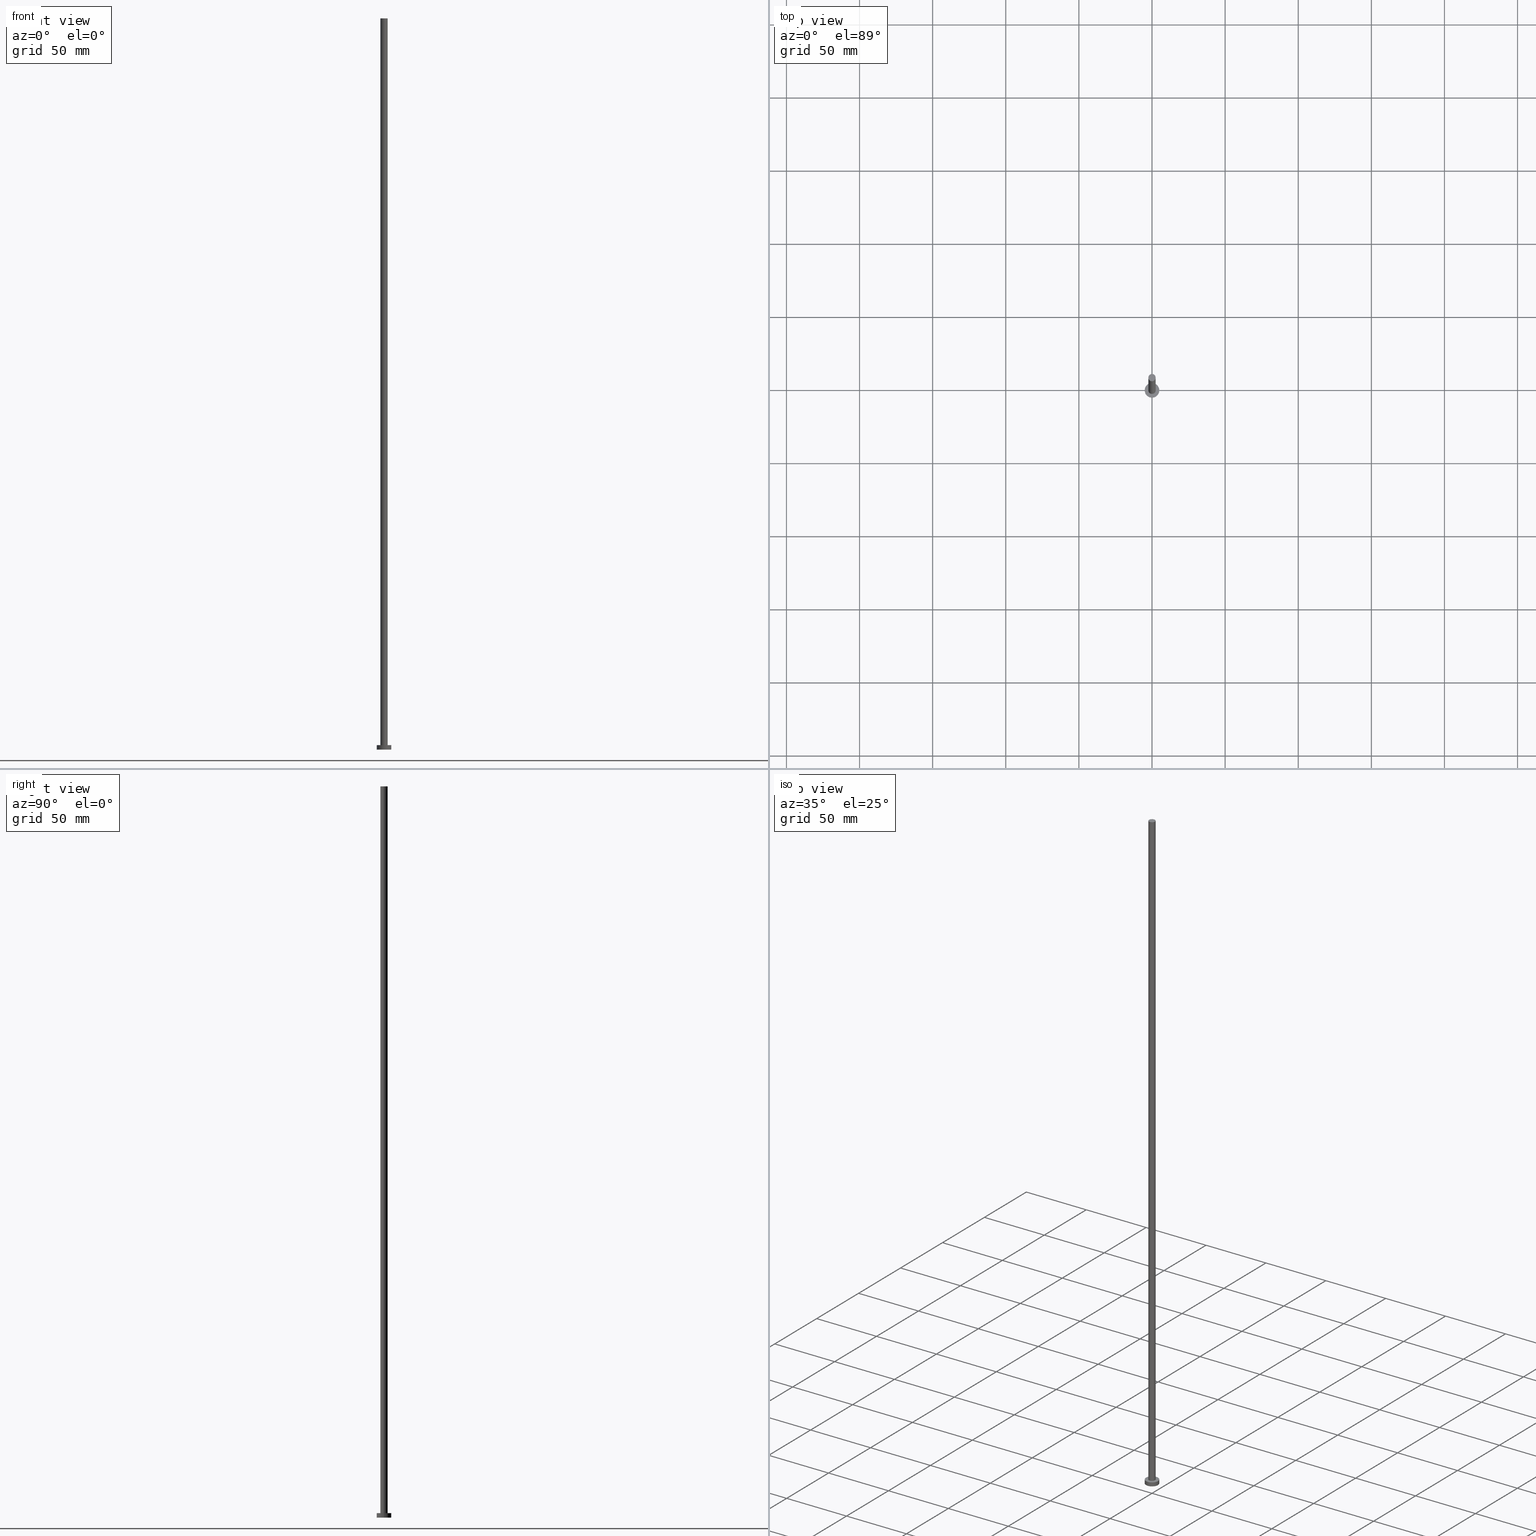
[diagram: canonical four-view strip — front | top / right | iso, engineering-drawing reading convention]
A machine part, canonical four-view strip (front | top / right | iso — engineering-drawing reading convention). The complete STEP part file that produces these views, byte-faithful:
ISO-10303-21;
HEADER;
FILE_DESCRIPTION (( 'STEP AP203' ),
    '1' );
FILE_NAME ('4a05.STEP',
    '2026-02-06T12:41:37',
    ( '' ),
    ( '' ),
    'SwSTEP 2.0',
    'SolidWorks 2019',
    '' );
FILE_SCHEMA (( 'CONFIG_CONTROL_DESIGN' ));
ENDSEC;

DATA;
#1 = AXIS2_PLACEMENT_3D ( 'NONE', #193, #144, #31 ) ;
#2 = LOCAL_TIME ( 13, 41, 37.00000000000000000, #181 ) ;
#3 = MANIFOLD_SOLID_BREP ( 'P�idat vysunut�m3', #194 ) ;
#4 = ADVANCED_FACE ( 'NONE', ( #78 ), #242, .T. ) ;
#5 = ORIENTED_EDGE ( 'NONE', *, *, #197, .T. ) ;
#6 = APPROVAL_STATUS ( 'not_yet_approved' ) ;
#7 = ORIENTED_EDGE ( 'NONE', *, *, #197, .F. ) ;
#8 = ORGANIZATION ( 'NEUR�EN�', 'NEUR�EN�', '' ) ;
#9 = VERTEX_POINT ( 'NONE', #29 ) ;
#10 = ORIENTED_EDGE ( 'NONE', *, *, #37, .F. ) ;
#11 = COORDINATED_UNIVERSAL_TIME_OFFSET ( 1, 0, .AHEAD. ) ;
#12 = ADVANCED_FACE ( 'NONE', ( #60, #136 ), #43, .T. ) ;
#13 = LINE ( 'NONE', #163, #26 ) ;
#14 = DIRECTION ( 'NONE',  ( 1.000000000000000000, 0.000000000000000000, 0.000000000000000000 ) ) ;
#15 = APPROVAL_PERSON_ORGANIZATION ( #228, #186, #28 ) ;
#16 = DIRECTION ( 'NONE',  ( -0.000000000000000000, -0.000000000000000000, -1.000000000000000000 ) ) ;
#17 = AXIS2_PLACEMENT_3D ( 'NONE', #161, #233, #104 ) ;
#18 = DIRECTION ( 'NONE',  ( 1.000000000000000000, 0.000000000000000000, -0.000000000000000000 ) ) ;
#19 = DIRECTION ( 'NONE',  ( 0.000000000000000000, 0.000000000000000000, 1.000000000000000000 ) ) ;
#20 = AXIS2_PLACEMENT_3D ( 'NONE', #187, #231, #109 ) ;
#21 = PRODUCT_RELATED_PRODUCT_CATEGORY ( 'detail', '', ( #173 ) ) ;
#22 = PERSON ( 'NEUR�EN�', 'NEUR�EN�', 'NEUR�EN�', ('NEUR�EN�'), ('NEUR�EN�'), ('NEUR�EN�') ) ;
#23 = ORIENTED_EDGE ( 'NONE', *, *, #206, .F. ) ;
#24 = PERSON_AND_ORGANIZATION ( #22, #8 ) ;
#25 = LOCAL_TIME ( 13, 41, 37.00000000000000000, #208 ) ;
#26 = VECTOR ( 'NONE', #69, 1000.000000000000000 ) ;
#27 = ORIENTED_EDGE ( 'NONE', *, *, #215, .T. ) ;
#28 = APPROVAL_ROLE ( '' ) ;
#29 = CARTESIAN_POINT ( 'NONE',  ( 5.000000000000000000, 6.123233995736766282E-16, 3.000000000000000000 ) ) ;
#30 = ORIENTED_EDGE ( 'NONE', *, *, #138, .F. ) ;
#31 = DIRECTION ( 'NONE',  ( 1.000000000000000000, 0.000000000000000000, 0.000000000000000000 ) ) ;
#32 = DIRECTION ( 'NONE',  ( 0.000000000000000000, 0.000000000000000000, 1.000000000000000000 ) ) ;
#33 = CC_DESIGN_APPROVAL ( #170, ( #128 ) ) ;
#34 = CARTESIAN_POINT ( 'NONE',  ( 0.000000000000000000, 0.000000000000000000, 3.000000000000000000 ) ) ;
#35 = CYLINDRICAL_SURFACE ( 'NONE', #91, 5.000000000000000000 ) ;
#36 = DIRECTION ( 'NONE',  ( -0.000000000000000000, -0.000000000000000000, -1.000000000000000000 ) ) ;
#37 = EDGE_CURVE ( 'NONE', #120, #226, #13, .T. ) ;
#38 = CALENDAR_DATE ( 2026, 6, 2 ) ;
#39 = FACE_OUTER_BOUND ( 'NONE', #44, .T. ) ;
#40 = PERSON_AND_ORGANIZATION ( #22, #8 ) ;
#41 = ORIENTED_EDGE ( 'NONE', *, *, #183, .F. ) ;
#42 = CALENDAR_DATE ( 2026, 6, 2 ) ;
#43 = PLANE ( 'NONE',  #159 ) ;
#44 = EDGE_LOOP ( 'NONE', ( #65, #23, #114, #63 ) ) ;
#45 = SECURITY_CLASSIFICATION_LEVEL ( 'unclassified' ) ;
#46 = CC_DESIGN_PERSON_AND_ORGANIZATION_ASSIGNMENT ( #135, #245, ( #55 ) ) ;
#47 = ORIENTED_EDGE ( 'NONE', *, *, #148, .F. ) ;
#48 = CARTESIAN_POINT ( 'NONE',  ( 2.500000000000000000, 3.061616997868382648E-16, 500.0000000000000000 ) ) ;
#49 = PLANE ( 'NONE',  #66 ) ;
#50 = LINE ( 'NONE', #106, #221 ) ;
#51 =( NAMED_UNIT ( * ) PLANE_ANGLE_UNIT ( ) SI_UNIT ( $, .RADIAN. ) );
#52 = SHAPE_DEFINITION_REPRESENTATION ( #175, #241 ) ;
#53 =( GEOMETRIC_REPRESENTATION_CONTEXT ( 3 ) GLOBAL_UNCERTAINTY_ASSIGNED_CONTEXT ( ( #217 ) ) GLOBAL_UNIT_ASSIGNED_CONTEXT ( ( #68, #51, #130 ) ) REPRESENTATION_CONTEXT ( 'NONE', 'WORKASPACE' ) );
#54 = AXIS2_PLACEMENT_3D ( 'NONE', #147, #164, #171 ) ;
#55 = PRODUCT_DEFINITION_FORMATION_WITH_SPECIFIED_SOURCE ( 'LIBOVOLN�', '', #173, .NOT_KNOWN. ) ;
#56 = VERTEX_POINT ( 'NONE', #166 ) ;
#57 = CALENDAR_DATE ( 2026, 6, 2 ) ;
#58 = CARTESIAN_POINT ( 'NONE',  ( 0.000000000000000000, 0.000000000000000000, 500.0000000000000000 ) ) ;
#59 = CIRCLE ( 'NONE', #129, 5.000000000000000000 ) ;
#60 = FACE_BOUND ( 'NONE', #97, .T. ) ;
#61 = COORDINATED_UNIVERSAL_TIME_OFFSET ( 1, 0, .AHEAD. ) ;
#62 = CC_DESIGN_PERSON_AND_ORGANIZATION_ASSIGNMENT ( #24, #92, ( #173 ) ) ;
#63 = ORIENTED_EDGE ( 'NONE', *, *, #148, .T. ) ;
#64 = CC_DESIGN_PERSON_AND_ORGANIZATION_ASSIGNMENT ( #79, #155, ( #128 ) ) ;
#65 = ORIENTED_EDGE ( 'NONE', *, *, #112, .F. ) ;
#66 = AXIS2_PLACEMENT_3D ( 'NONE', #122, #32, #126 ) ;
#67 = DIRECTION ( 'NONE',  ( -0.000000000000000000, -0.000000000000000000, -1.000000000000000000 ) ) ;
#68 =( LENGTH_UNIT ( ) NAMED_UNIT ( * ) SI_UNIT ( .MILLI., .METRE. ) );
#69 = DIRECTION ( 'NONE',  ( -0.000000000000000000, -0.000000000000000000, -1.000000000000000000 ) ) ;
#70 = FACE_OUTER_BOUND ( 'NONE', #142, .T. ) ;
#71 = DIRECTION ( 'NONE',  ( 1.000000000000000000, 0.000000000000000000, 0.000000000000000000 ) ) ;
#72 = EDGE_CURVE ( 'NONE', #153, #244, #50, .T. ) ;
#73 = PLANE ( 'NONE',  #250 ) ;
#74 = ADVANCED_FACE ( 'NONE', ( #196 ), #49, .F. ) ;
#75 = DIRECTION ( 'NONE',  ( 1.000000000000000000, 0.000000000000000000, 0.000000000000000000 ) ) ;
#76 = LOCAL_TIME ( 13, 41, 37.00000000000000000, #61 ) ;
#77 = DATE_AND_TIME ( #113, #76 ) ;
#78 = FACE_OUTER_BOUND ( 'NONE', #99, .T. ) ;
#79 = PERSON_AND_ORGANIZATION ( #22, #8 ) ;
#80 = ORIENTED_EDGE ( 'NONE', *, *, #206, .T. ) ;
#81 = AXIS2_PLACEMENT_3D ( 'NONE', #103, #87, #71 ) ;
#82 = CC_DESIGN_DATE_AND_TIME_ASSIGNMENT ( #119, #202, ( #105 ) ) ;
#83 = DIRECTION ( 'NONE',  ( -1.000000000000000000, 0.000000000000000000, 0.000000000000000000 ) ) ;
#84 = APPROVAL_DATE_TIME ( #96, #186 ) ;
#85 = PERSON_AND_ORGANIZATION ( #22, #8 ) ;
#86 = DIRECTION ( 'NONE',  ( 1.000000000000000000, 0.000000000000000000, 0.000000000000000000 ) ) ;
#87 = DIRECTION ( 'NONE',  ( 0.000000000000000000, 0.000000000000000000, 1.000000000000000000 ) ) ;
#88 = ADVANCED_FACE ( 'NONE', ( #70 ), #249, .T. ) ;
#89 = FACE_OUTER_BOUND ( 'NONE', #157, .T. ) ;
#90 = ORIENTED_EDGE ( 'NONE', *, *, #152, .F. ) ;
#91 = AXIS2_PLACEMENT_3D ( 'NONE', #254, #232, #192 ) ;
#92 = PERSON_AND_ORGANIZATION_ROLE ( 'design_owner' ) ;
#93 = APPROVAL_DATE_TIME ( #77, #195 ) ;
#94 = CIRCLE ( 'NONE', #54, 5.000000000000000000 ) ;
#95 = ORIENTED_EDGE ( 'NONE', *, *, #112, .T. ) ;
#96 = DATE_AND_TIME ( #42, #248 ) ;
#97 = EDGE_LOOP ( 'NONE', ( #178, #180 ) ) ;
#98 = DATE_TIME_ROLE ( 'classification_date' ) ;
#99 = EDGE_LOOP ( 'NONE', ( #176, #7, #154, #27 ) ) ;
#100 = APPROVAL_STATUS ( 'not_yet_approved' ) ;
#101 = DIRECTION ( 'NONE',  ( 1.000000000000000000, 0.000000000000000000, -0.000000000000000000 ) ) ;
#102 = CARTESIAN_POINT ( 'NONE',  ( 0.000000000000000000, 0.000000000000000000, 500.0000000000000000 ) ) ;
#103 = CARTESIAN_POINT ( 'NONE',  ( 0.000000000000000000, 0.000000000000000000, 500.0000000000000000 ) ) ;
#104 = DIRECTION ( 'NONE',  ( 1.000000000000000000, 0.000000000000000000, 0.000000000000000000 ) ) ;
#105 = PRODUCT_DEFINITION ( 'NEZN�M�', '', #55, #191 ) ;
#106 = CARTESIAN_POINT ( 'NONE',  ( -2.500000000000000000, 0.000000000000000000, 500.0000000000000000 ) ) ;
#107 = CIRCLE ( 'NONE', #174, 5.000000000000000000 ) ;
#108 = APPROVAL_PERSON_ORGANIZATION ( #40, #195, #204 ) ;
#109 = DIRECTION ( 'NONE',  ( 1.000000000000000000, 0.000000000000000000, 0.000000000000000000 ) ) ;
#110 = CARTESIAN_POINT ( 'NONE',  ( 0.000000000000000000, 0.000000000000000000, 0.000000000000000000 ) ) ;
#111 = CIRCLE ( 'NONE', #17, 2.500000000000000000 ) ;
#112 = EDGE_CURVE ( 'NONE', #9, #56, #234, .T. ) ;
#113 = CALENDAR_DATE ( 2026, 6, 2 ) ;
#114 = ORIENTED_EDGE ( 'NONE', *, *, #37, .T. ) ;
#115 = AXIS2_PLACEMENT_3D ( 'NONE', #110, #19, #237 ) ;
#116 = LOCAL_TIME ( 13, 41, 37.00000000000000000, #11 ) ;
#117 = EDGE_LOOP ( 'NONE', ( #80, #158 ) ) ;
#118 = CARTESIAN_POINT ( 'NONE',  ( 0.000000000000000000, 0.000000000000000000, 3.000000000000000000 ) ) ;
#119 = DATE_AND_TIME ( #57, #2 ) ;
#120 = VERTEX_POINT ( 'NONE', #213 ) ;
#121 = COORDINATED_UNIVERSAL_TIME_OFFSET ( 1, 0, .AHEAD. ) ;
#122 = CARTESIAN_POINT ( 'NONE',  ( 0.000000000000000000, 0.000000000000000000, 0.000000000000000000 ) ) ;
#123 = CARTESIAN_POINT ( 'NONE',  ( -2.500000000000000000, 0.000000000000000000, 500.0000000000000000 ) ) ;
#124 = APPLICATION_CONTEXT ( 'configuration controlled 3d designs of mechanical parts and assemblies' ) ;
#125 = DIRECTION ( 'NONE',  ( -1.000000000000000000, 0.000000000000000000, 0.000000000000000000 ) ) ;
#126 = DIRECTION ( 'NONE',  ( 1.000000000000000000, 0.000000000000000000, -0.000000000000000000 ) ) ;
#127 = AXIS2_PLACEMENT_3D ( 'NONE', #34, #67, #125 ) ;
#128 = SECURITY_CLASSIFICATION ( '', '', #45 ) ;
#129 = AXIS2_PLACEMENT_3D ( 'NONE', #212, #214, #14 ) ;
#130 =( NAMED_UNIT ( * ) SI_UNIT ( $, .STERADIAN. ) SOLID_ANGLE_UNIT ( ) );
#131 = ADVANCED_FACE ( 'NONE', ( #39 ), #35, .T. ) ;
#132 = CALENDAR_DATE ( 2026, 6, 2 ) ;
#133 = DIRECTION ( 'NONE',  ( -0.000000000000000000, -0.000000000000000000, -1.000000000000000000 ) ) ;
#134 = VECTOR ( 'NONE', #253, 1000.000000000000000 ) ;
#135 = PERSON_AND_ORGANIZATION ( #22, #8 ) ;
#136 = FACE_OUTER_BOUND ( 'NONE', #117, .T. ) ;
#137 = PERSON_AND_ORGANIZATION_ROLE ( 'creator' ) ;
#138 = EDGE_CURVE ( 'NONE', #9, #120, #94, .T. ) ;
#139 = VERTEX_POINT ( 'NONE', #251 ) ;
#140 = PERSON_AND_ORGANIZATION_ROLE ( 'design_supplier' ) ;
#141 = CC_DESIGN_PERSON_AND_ORGANIZATION_ASSIGNMENT ( #85, #137, ( #105 ) ) ;
#142 = EDGE_LOOP ( 'NONE', ( #90, #224, #156, #246 ) ) ;
#143 = VECTOR ( 'NONE', #16, 1000.000000000000000 ) ;
#144 = DIRECTION ( 'NONE',  ( 0.000000000000000000, 0.000000000000000000, 1.000000000000000000 ) ) ;
#145 = AXIS2_PLACEMENT_3D ( 'NONE', #58, #133, #83 ) ;
#146 = DIRECTION ( 'NONE',  ( 0.000000000000000000, 0.000000000000000000, 1.000000000000000000 ) ) ;
#147 = CARTESIAN_POINT ( 'NONE',  ( 0.000000000000000000, 0.000000000000000000, 3.000000000000000000 ) ) ;
#148 = EDGE_CURVE ( 'NONE', #226, #56, #107, .T. ) ;
#149 = CARTESIAN_POINT ( 'NONE',  ( 5.000000000000000000, 6.123233995736766282E-16, 3.000000000000000000 ) ) ;
#150 = CARTESIAN_POINT ( 'NONE',  ( 0.000000000000000000, 0.000000000000000000, 0.000000000000000000 ) ) ;
#151 = APPROVAL_DATE_TIME ( #255, #170 ) ;
#152 = EDGE_CURVE ( 'NONE', #222, #153, #243, .T. ) ;
#153 = VERTEX_POINT ( 'NONE', #123 ) ;
#154 = ORIENTED_EDGE ( 'NONE', *, *, #72, .T. ) ;
#155 = PERSON_AND_ORGANIZATION_ROLE ( 'classification_officer' ) ;
#156 = ORIENTED_EDGE ( 'NONE', *, *, #236, .T. ) ;
#157 = EDGE_LOOP ( 'NONE', ( #5, #205 ) ) ;
#158 = ORIENTED_EDGE ( 'NONE', *, *, #138, .T. ) ;
#159 = AXIS2_PLACEMENT_3D ( 'NONE', #118, #207, #101 ) ;
#160 = CARTESIAN_POINT ( 'NONE',  ( 0.000000000000000000, 0.000000000000000000, 500.0000000000000000 ) ) ;
#161 = CARTESIAN_POINT ( 'NONE',  ( 0.000000000000000000, 0.000000000000000000, 3.000000000000000000 ) ) ;
#162 = CC_DESIGN_SECURITY_CLASSIFICATION ( #128, ( #55 ) ) ;
#163 = CARTESIAN_POINT ( 'NONE',  ( -5.000000000000000000, 0.000000000000000000, 3.000000000000000000 ) ) ;
#164 = DIRECTION ( 'NONE',  ( 0.000000000000000000, 0.000000000000000000, 1.000000000000000000 ) ) ;
#165 = APPLICATION_CONTEXT ( 'configuration controlled 3d designs of mechanical parts and assemblies' ) ;
#166 = CARTESIAN_POINT ( 'NONE',  ( 5.000000000000000000, 6.123233995736766282E-16, 0.000000000000000000 ) ) ;
#167 = CARTESIAN_POINT ( 'NONE',  ( -2.500000000000000000, 0.000000000000000000, 3.000000000000000000 ) ) ;
#168 = DIRECTION ( 'NONE',  ( 0.000000000000000000, 0.000000000000000000, 1.000000000000000000 ) ) ;
#169 = LINE ( 'NONE', #48, #143 ) ;
#170 = APPROVAL ( #100, 'NEUR�EN�' ) ;
#171 = DIRECTION ( 'NONE',  ( 1.000000000000000000, 0.000000000000000000, 0.000000000000000000 ) ) ;
#172 = CC_DESIGN_DATE_AND_TIME_ASSIGNMENT ( #225, #98, ( #128 ) ) ;
#173 = PRODUCT ( '4a05', '4a05', '', ( #199 ) ) ;
#174 = AXIS2_PLACEMENT_3D ( 'NONE', #252, #218, #86 ) ;
#175 = PRODUCT_DEFINITION_SHAPE ( 'NONE', 'NONE',  #105 ) ;
#176 = ORIENTED_EDGE ( 'NONE', *, *, #238, .F. ) ;
#177 = PERSON_AND_ORGANIZATION ( #22, #8 ) ;
#178 = ORIENTED_EDGE ( 'NONE', *, *, #215, .F. ) ;
#179 = PERSON_AND_ORGANIZATION ( #22, #8 ) ;
#180 = ORIENTED_EDGE ( 'NONE', *, *, #236, .F. ) ;
#181 = COORDINATED_UNIVERSAL_TIME_OFFSET ( 1, 0, .AHEAD. ) ;
#182 = APPROVAL_ROLE ( '' ) ;
#183 = EDGE_CURVE ( 'NONE', #56, #226, #219, .T. ) ;
#184 = AXIS2_PLACEMENT_3D ( 'NONE', #150, #146, #75 ) ;
#185 = DIRECTION ( 'NONE',  ( -1.000000000000000000, 0.000000000000000000, 0.000000000000000000 ) ) ;
#186 = APPROVAL ( #6, 'NEUR�EN�' ) ;
#187 = CARTESIAN_POINT ( 'NONE',  ( 0.000000000000000000, 0.000000000000000000, 500.0000000000000000 ) ) ;
#188 = CARTESIAN_POINT ( 'NONE',  ( 2.500000000000000000, 3.061616997868382648E-16, 500.0000000000000000 ) ) ;
#189 = CYLINDRICAL_SURFACE ( 'NONE', #127, 5.000000000000000000 ) ;
#190 = ADVANCED_FACE ( 'NONE', ( #211 ), #189, .T. ) ;
#191 = DESIGN_CONTEXT ( 'detailed design', #165, 'design' ) ;
#192 = DIRECTION ( 'NONE',  ( -1.000000000000000000, 0.000000000000000000, 0.000000000000000000 ) ) ;
#193 = CARTESIAN_POINT ( 'NONE',  ( 0.000000000000000000, 0.000000000000000000, 3.000000000000000000 ) ) ;
#194 = CLOSED_SHELL ( 'NONE', ( #88, #190, #131, #12, #74, #4, #200 ) ) ;
#195 = APPROVAL ( #230, 'NEUR�EN�' ) ;
#196 = FACE_OUTER_BOUND ( 'NONE', #229, .T. ) ;
#197 = EDGE_CURVE ( 'NONE', #153, #222, #223, .T. ) ;
#198 = APPLICATION_PROTOCOL_DEFINITION ( 'international standard', 'config_control_design', 1994, #124 ) ;
#199 = MECHANICAL_CONTEXT ( 'NONE', #124, 'mechanical' ) ;
#200 = ADVANCED_FACE ( 'NONE', ( #89 ), #73, .T. ) ;
#201 = ORIENTED_EDGE ( 'NONE', *, *, #183, .T. ) ;
#202 = DATE_TIME_ROLE ( 'creation_date' ) ;
#203 = AXIS2_PLACEMENT_3D ( 'NONE', #102, #216, #185 ) ;
#204 = APPROVAL_ROLE ( '' ) ;
#205 = ORIENTED_EDGE ( 'NONE', *, *, #152, .T. ) ;
#206 = EDGE_CURVE ( 'NONE', #120, #9, #59, .T. ) ;
#207 = DIRECTION ( 'NONE',  ( 0.000000000000000000, 0.000000000000000000, 1.000000000000000000 ) ) ;
#208 = COORDINATED_UNIVERSAL_TIME_OFFSET ( 1, 0, .AHEAD. ) ;
#209 = CC_DESIGN_APPROVAL ( #195, ( #105 ) ) ;
#210 = APPROVAL_PERSON_ORGANIZATION ( #179, #170, #182 ) ;
#211 = FACE_OUTER_BOUND ( 'NONE', #239, .T. ) ;
#212 = CARTESIAN_POINT ( 'NONE',  ( 0.000000000000000000, 0.000000000000000000, 3.000000000000000000 ) ) ;
#213 = CARTESIAN_POINT ( 'NONE',  ( -5.000000000000000000, 0.000000000000000000, 3.000000000000000000 ) ) ;
#214 = DIRECTION ( 'NONE',  ( 0.000000000000000000, 0.000000000000000000, 1.000000000000000000 ) ) ;
#215 = EDGE_CURVE ( 'NONE', #244, #139, #111, .T. ) ;
#216 = DIRECTION ( 'NONE',  ( -0.000000000000000000, -0.000000000000000000, -1.000000000000000000 ) ) ;
#217 = UNCERTAINTY_MEASURE_WITH_UNIT (LENGTH_MEASURE( 1.000000000000000082E-05 ), #68, 'distance_accuracy_value', 'NONE');
#218 = DIRECTION ( 'NONE',  ( 0.000000000000000000, 0.000000000000000000, 1.000000000000000000 ) ) ;
#219 = CIRCLE ( 'NONE', #184, 5.000000000000000000 ) ;
#220 = CC_DESIGN_APPROVAL ( #186, ( #55 ) ) ;
#221 = VECTOR ( 'NONE', #36, 1000.000000000000000 ) ;
#222 = VERTEX_POINT ( 'NONE', #188 ) ;
#223 = CIRCLE ( 'NONE', #81, 2.500000000000000000 ) ;
#224 = ORIENTED_EDGE ( 'NONE', *, *, #238, .T. ) ;
#225 = DATE_AND_TIME ( #132, #25 ) ;
#226 = VERTEX_POINT ( 'NONE', #247 ) ;
#227 = CC_DESIGN_PERSON_AND_ORGANIZATION_ASSIGNMENT ( #177, #140, ( #55 ) ) ;
#228 = PERSON_AND_ORGANIZATION ( #22, #8 ) ;
#229 = EDGE_LOOP ( 'NONE', ( #47, #41 ) ) ;
#230 = APPROVAL_STATUS ( 'not_yet_approved' ) ;
#231 = DIRECTION ( 'NONE',  ( 0.000000000000000000, 0.000000000000000000, 1.000000000000000000 ) ) ;
#232 = DIRECTION ( 'NONE',  ( -0.000000000000000000, -0.000000000000000000, -1.000000000000000000 ) ) ;
#233 = DIRECTION ( 'NONE',  ( 0.000000000000000000, 0.000000000000000000, 1.000000000000000000 ) ) ;
#234 = LINE ( 'NONE', #149, #134 ) ;
#235 = CIRCLE ( 'NONE', #1, 2.500000000000000000 ) ;
#236 = EDGE_CURVE ( 'NONE', #139, #244, #235, .T. ) ;
#237 = DIRECTION ( 'NONE',  ( 1.000000000000000000, 0.000000000000000000, 0.000000000000000000 ) ) ;
#238 = EDGE_CURVE ( 'NONE', #222, #139, #169, .T. ) ;
#239 = EDGE_LOOP ( 'NONE', ( #30, #95, #201, #10 ) ) ;
#240 = APPLICATION_PROTOCOL_DEFINITION ( 'international standard', 'config_control_design', 1994, #165 ) ;
#241 = ADVANCED_BREP_SHAPE_REPRESENTATION ( '4a05', ( #3, #115 ), #53 ) ;
#242 = CYLINDRICAL_SURFACE ( 'NONE', #145, 2.500000000000000000 ) ;
#243 = CIRCLE ( 'NONE', #20, 2.500000000000000000 ) ;
#244 = VERTEX_POINT ( 'NONE', #167 ) ;
#245 = PERSON_AND_ORGANIZATION_ROLE ( 'creator' ) ;
#246 = ORIENTED_EDGE ( 'NONE', *, *, #72, .F. ) ;
#247 = CARTESIAN_POINT ( 'NONE',  ( -5.000000000000000000, 0.000000000000000000, 0.000000000000000000 ) ) ;
#248 = LOCAL_TIME ( 13, 41, 37.00000000000000000, #121 ) ;
#249 = CYLINDRICAL_SURFACE ( 'NONE', #203, 2.500000000000000000 ) ;
#250 = AXIS2_PLACEMENT_3D ( 'NONE', #160, #168, #18 ) ;
#251 = CARTESIAN_POINT ( 'NONE',  ( 2.500000000000000000, 3.061616997868382648E-16, 3.000000000000000000 ) ) ;
#252 = CARTESIAN_POINT ( 'NONE',  ( 0.000000000000000000, 0.000000000000000000, 0.000000000000000000 ) ) ;
#253 = DIRECTION ( 'NONE',  ( -0.000000000000000000, -0.000000000000000000, -1.000000000000000000 ) ) ;
#254 = CARTESIAN_POINT ( 'NONE',  ( 0.000000000000000000, 0.000000000000000000, 3.000000000000000000 ) ) ;
#255 = DATE_AND_TIME ( #38, #116 ) ;
ENDSEC;
END-ISO-10303-21;
